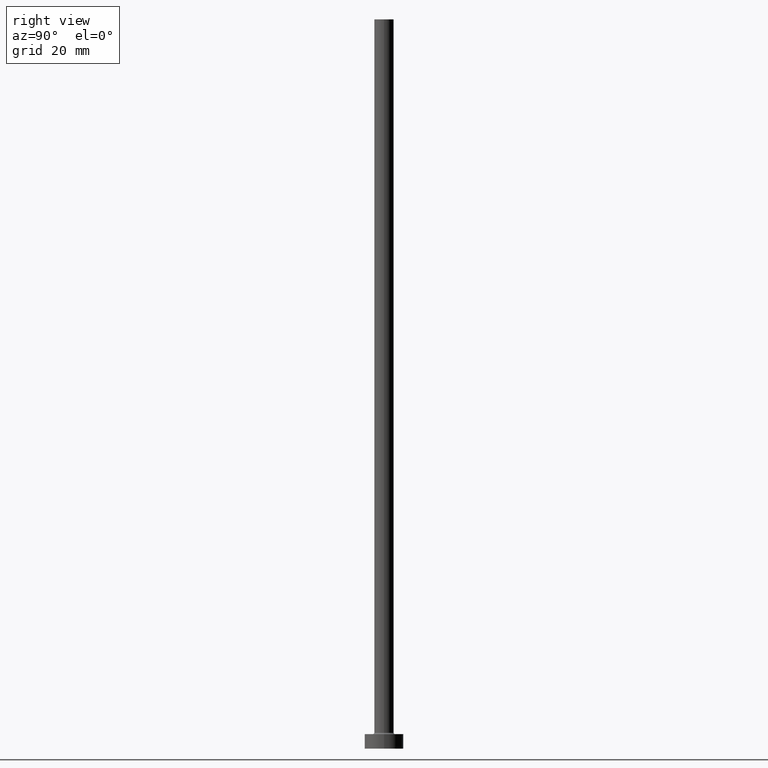
[diagram: clean part render]
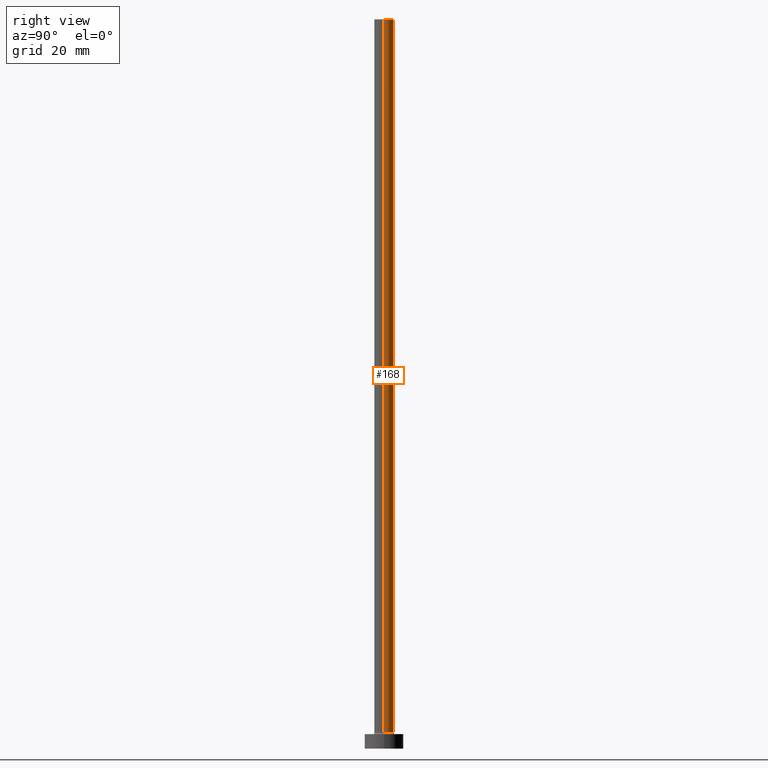
[diagram: same view with one face highlighted and labeled with its STEP entity id]
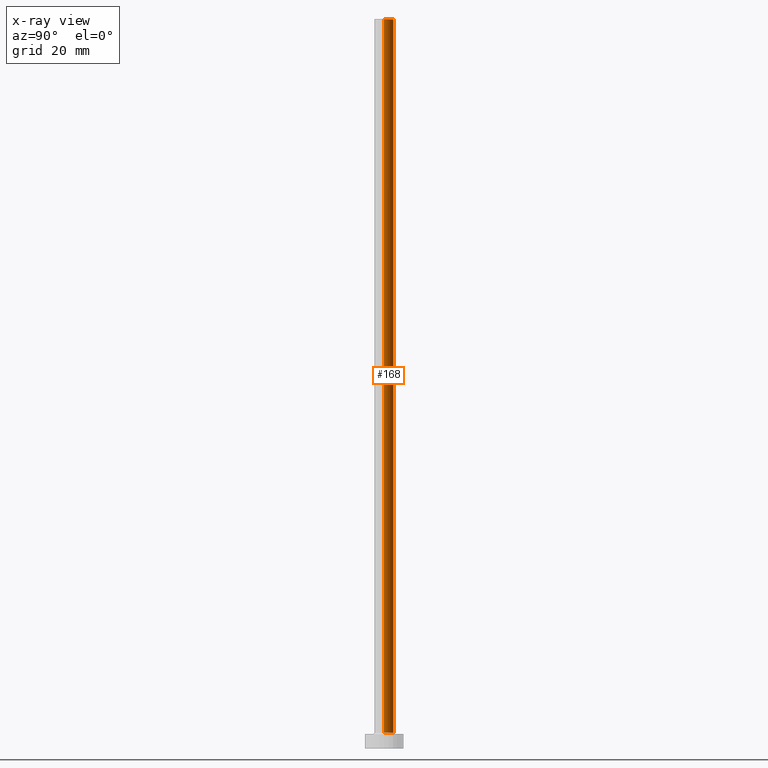
[diagram: x-ray of the same camera — body ghosted, the highlighted face saturated]
A machine part, right view. The second image highlights one B-rep face of the part: STEP entity #168.
The next image is the same camera in x-ray: the body ghosted, the highlighted face saturated — about 0% of this face is hidden behind the body in this view.
In plain terms, the highlighted cylindrical surface (edge-blend (fillet) strip) has radius 2 mm, axis along (-0, -0, -1).
Its self-contained STEP definition (entity closure, byte-faithful):
#2 = DIRECTION ( 'NONE',  ( -1.000000000000000000, 0.000000000000000000, 0.000000000000000000 ) ) ;
#3 = VECTOR ( 'NONE', #306, 1000.000000000000000 ) ;
#14 = DIRECTION ( 'NONE',  ( -0.000000000000000000, -0.000000000000000000, -1.000000000000000000 ) ) ;
#25 = CIRCLE ( 'NONE', #195, 2.000000000000000000 ) ;
#78 = VERTEX_POINT ( 'NONE', #283 ) ;
#93 = VECTOR ( 'NONE', #14, 1000.000000000000000 ) ;
#103 = DIRECTION ( 'NONE',  ( 0.000000000000000000, 0.000000000000000000, 1.000000000000000000 ) ) ;
#114 = CARTESIAN_POINT ( 'NONE',  ( -2.000000000000000000, 0.000000000000000000, 150.0000000000000000 ) ) ;
#118 = ORIENTED_EDGE ( 'NONE', *, *, #127, .F. ) ;
#127 = EDGE_CURVE ( 'NONE', #190, #341, #25, .T. ) ;
#145 = AXIS2_PLACEMENT_3D ( 'NONE', #388, #209, #331 ) ;
#151 = EDGE_CURVE ( 'NONE', #78, #157, #153, .T. ) ;
#153 = CIRCLE ( 'NONE', #145, 2.000000000000000000 ) ;
#157 = VERTEX_POINT ( 'NONE', #185 ) ;
#159 = EDGE_LOOP ( 'NONE', ( #118, #261, #351, #380 ) ) ;
#160 = CARTESIAN_POINT ( 'NONE',  ( -2.000000000000000000, 0.000000000000000000, 150.0000000000000000 ) ) ;
#168 = ADVANCED_FACE ( 'NONE', ( #330 ), #288, .T. ) ;
#185 = CARTESIAN_POINT ( 'NONE',  ( -2.000000000000000000, 0.000000000000000000, 3.299999999999997158 ) ) ;
#190 = VERTEX_POINT ( 'NONE', #293 ) ;
#195 = AXIS2_PLACEMENT_3D ( 'NONE', #430, #103, #256 ) ;
#199 = CARTESIAN_POINT ( 'NONE',  ( 2.000000000000000000, 2.449293598294706414E-16, 150.0000000000000000 ) ) ;
#209 = DIRECTION ( 'NONE',  ( 0.000000000000000000, 0.000000000000000000, 1.000000000000000000 ) ) ;
#236 = LINE ( 'NONE', #199, #3 ) ;
#256 = DIRECTION ( 'NONE',  ( 1.000000000000000000, 0.000000000000000000, 0.000000000000000000 ) ) ;
#261 = ORIENTED_EDGE ( 'NONE', *, *, #360, .T. ) ;
#283 = CARTESIAN_POINT ( 'NONE',  ( 2.000000000000000000, 2.449293598294706414E-16, 3.299999999999997158 ) ) ;
#288 = CYLINDRICAL_SURFACE ( 'NONE', #300, 2.000000000000000000 ) ;
#293 = CARTESIAN_POINT ( 'NONE',  ( 2.000000000000000000, 2.449293598294706414E-16, 150.0000000000000000 ) ) ;
#300 = AXIS2_PLACEMENT_3D ( 'NONE', #432, #370, #2 ) ;
#306 = DIRECTION ( 'NONE',  ( -0.000000000000000000, -0.000000000000000000, -1.000000000000000000 ) ) ;
#330 = FACE_OUTER_BOUND ( 'NONE', #159, .T. ) ;
#331 = DIRECTION ( 'NONE',  ( 1.000000000000000000, 0.000000000000000000, 0.000000000000000000 ) ) ;
#341 = VERTEX_POINT ( 'NONE', #114 ) ;
#344 = EDGE_CURVE ( 'NONE', #341, #157, #407, .T. ) ;
#351 = ORIENTED_EDGE ( 'NONE', *, *, #151, .T. ) ;
#360 = EDGE_CURVE ( 'NONE', #190, #78, #236, .T. ) ;
#370 = DIRECTION ( 'NONE',  ( -0.000000000000000000, -0.000000000000000000, -1.000000000000000000 ) ) ;
#380 = ORIENTED_EDGE ( 'NONE', *, *, #344, .F. ) ;
#388 = CARTESIAN_POINT ( 'NONE',  ( 0.000000000000000000, 0.000000000000000000, 3.299999999999997158 ) ) ;
#407 = LINE ( 'NONE', #160, #93 ) ;
#430 = CARTESIAN_POINT ( 'NONE',  ( 0.000000000000000000, 0.000000000000000000, 150.0000000000000000 ) ) ;
#432 = CARTESIAN_POINT ( 'NONE',  ( 0.000000000000000000, 0.000000000000000000, 150.0000000000000000 ) ) ;